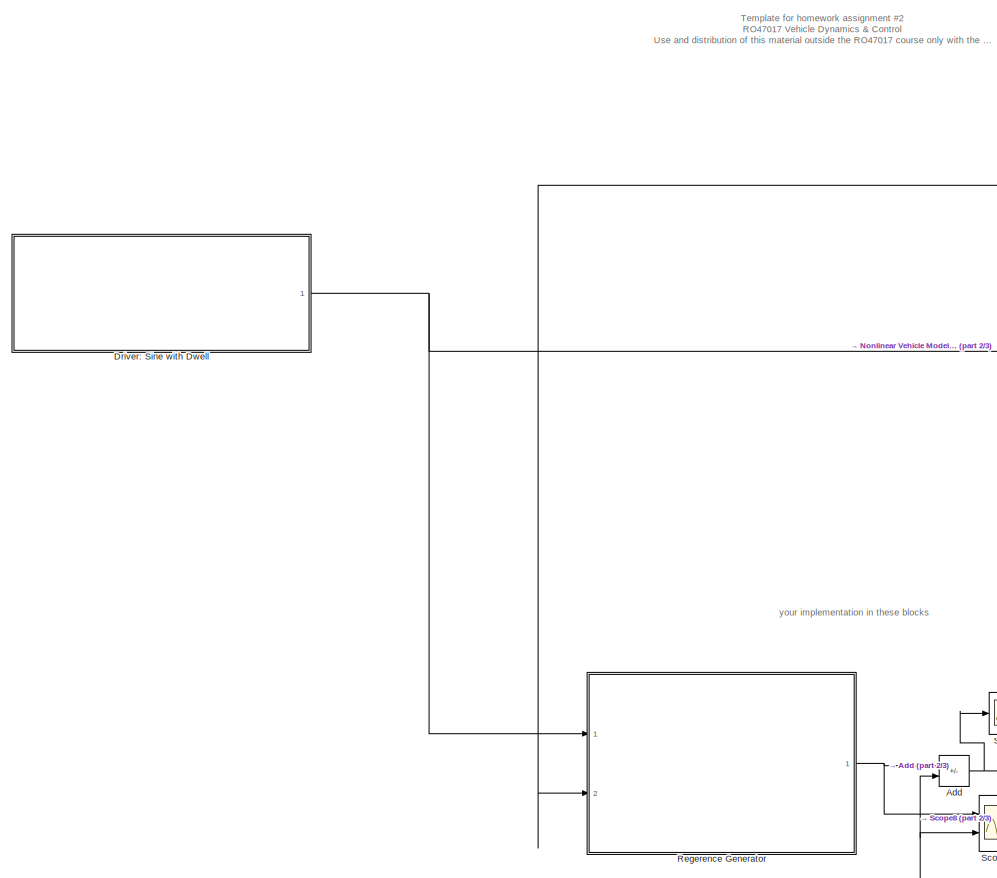
[diagram: root canvas - part 1/3, left side, full height]
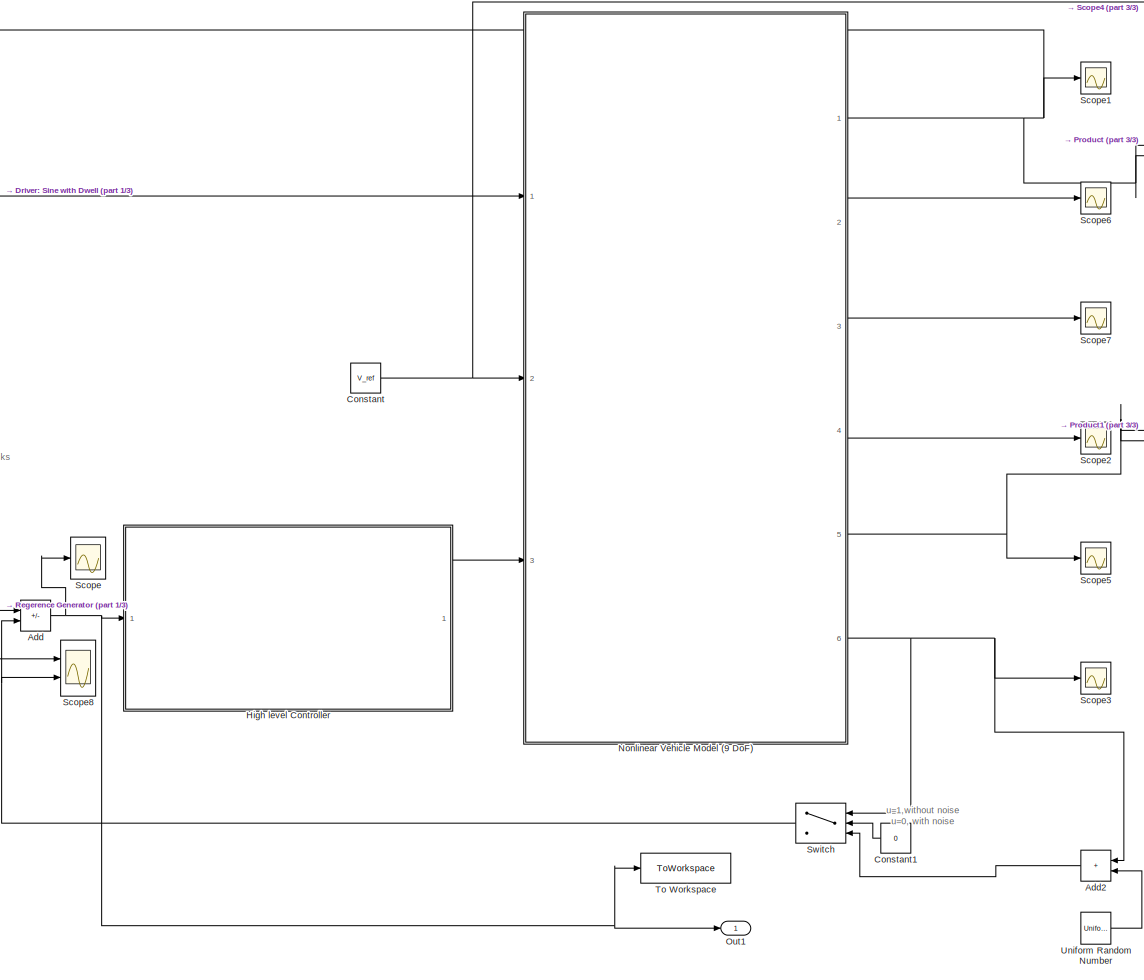
[diagram: root canvas - part 2/3, center side, full height]
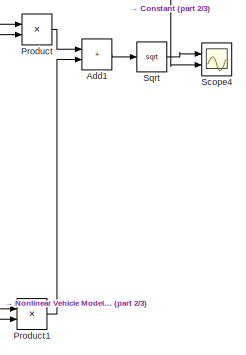
[diagram: root canvas - part 3/3, middle right region]
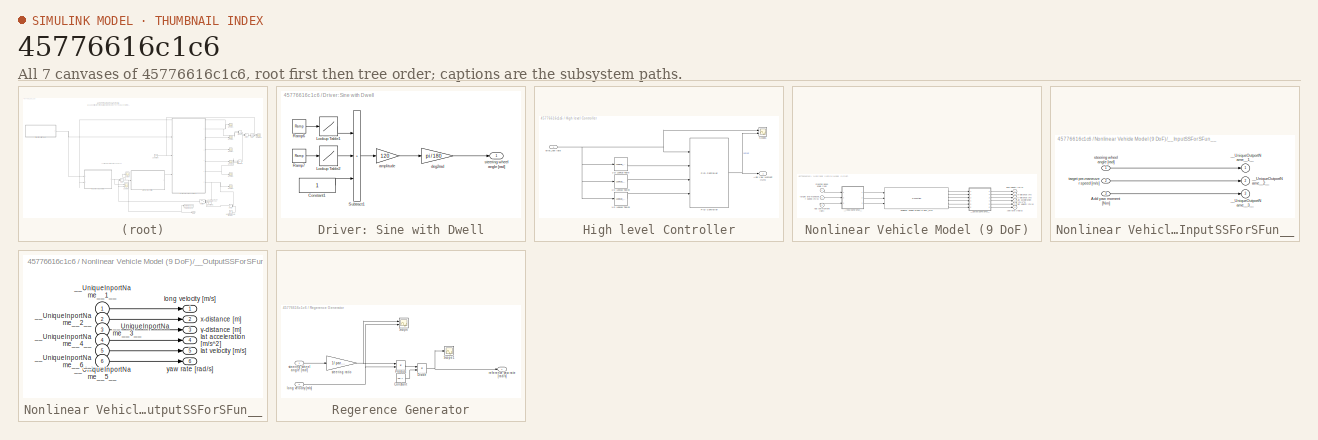
[diagram: thumbnail index - all 7 canvases of the model, root first then tree order]
MODEL slx_45776616c1c6
KIND model
CONFIG AbsTol = auto
CONFIG EnableMultiTasking = on
CONFIG FixedStep = 1e-3
CONFIG MaxStep = auto
CONFIG MinStep = auto
CONFIG RelTol = 1e-3
CONFIG SampleTimeConstraint = Unconstrained
CONFIG Solver = ode4
CONFIG SolverName = ode4
CONFIG StartTime = 0.0
CONFIG StopTime = 20
BLOCK [Sum] Add
  IconShape = rectangular
  Inputs = +-
  Ports = [2, 1]
BLOCK [Sum] Add1
  IconShape = rectangular
  Ports = [2, 1]
BLOCK [Sum] Add2
  IconShape = rectangular
  Ports = [2, 1]
BLOCK [Constant] Constant
  Value = V_ref
BLOCK [Constant] Constant1
  Value = 0
BLOCK [SubSystem] Driver: Sine with Dwell
  Ports = [0, 1]
  RequestExecContextInheritance = off
BLOCK [Constant] Driver: Sine with Dwell/Constant1
BLOCK [Lookup] Driver: Sine with Dwell/Lookup Table1
  InputValues = [0:0.1:3*pi/2 3*pi/2+eps]*0.7
  LookUpMeth = Interpolation-Use End Values
  SaturateOnIntegerOverflow = off
  Table = sin([0:0.1:3*pi/2 3*pi/2+eps])
BLOCK [Lookup] Driver: Sine with Dwell/Lookup Table2
  InputValues = [3*pi/2:0.1:2*pi 2*pi+eps]*0.7
  LookUpMeth = Interpolation-Use End Values
  SaturateOnIntegerOverflow = off
  Table = sin([3*pi/2:0.1:2*pi 2*pi+eps])
BLOCK [Reference] Driver: Sine with Dwell/Ramp6  REF=simulink/Sources/Ramp
  Ports = [0, 1]
  SourceBlock = simulink/Sources/Ramp
  SourceProductBaseCode = SL
  SourceType = Ramp
BLOCK [Reference] Driver: Sine with Dwell/Ramp7  REF=simulink/Sources/Ramp
  Ports = [0, 1]
  SourceBlock = simulink/Sources/Ramp
  SourceProductBaseCode = SL
  SourceType = Ramp
BLOCK [Sum] Driver: Sine with Dwell/Subtract1
  IconShape = rectangular
  Inputs = +++
  Ports = [3, 1]
BLOCK [Gain] Driver: Sine with Dwell/amplitude
  Gain = 120
BLOCK [Gain] Driver: Sine with Dwell/deg2rad
  Gain = pi / 180
BLOCK [Outport] Driver: Sine with Dwell/steering wheel angle [rad]
  VectorParamsAs1DForOutWhenUnconnected = off
BLOCK [SubSystem] High level Controller
  Ports = [1, 1]
  RequestExecContextInheritance = off
BLOCK [Lookup_n-D] High level Controller/1-D Lookup Table
  BreakpointsForDimension1 = [0;0.03;0.06;0.09;0.12]
  InternalRulePriority = Speed
  NumberOfTableDimensions = 1
  Ports = [1, 1]
  RndMeth = Simplest
  Table = [50000;50000*1.1;50000*1.1;50000*1.2;50000*1.2]
BLOCK [Lookup_n-D] High level Controller/1-D Lookup Table2
  BreakpointsForDimension1 = [0;0.03;0.06;0.09;0.12]
  InternalRulePriority = Speed
  NumberOfTableDimensions = 1
  Ports = [1, 1]
  RndMeth = Simplest
  Table = [50000;50000*1.1;50000*1.2;50000*1.2;50000*1.2]
BLOCK [Lookup_n-D] High level Controller/1-D Lookup Table3
  BreakpointsForDimension1 = [0;2;4;6;8]
  InternalRulePriority = Speed
  NumberOfTableDimensions = 1
  Ports = [1, 1]
  RndMeth = Simplest
  Table = [100;100;100;100;100]
BLOCK [Outport] High level Controller/Add Yaw Moment [Nm]
  VectorParamsAs1DForOutWhenUnconnected = off
BLOCK [Reference] High level Controller/PID Controller  REF=simulink/Continuous/PID Controller
  Ports = [4, 1]
  SourceBlock = simulink/Continuous/PID Controller
  SourceProductBaseCode = SL
  SourceType = PID 1dof
BLOCK [Scope] High level Controller/Scope1
  Floating = off
  NumInputPorts = 2
  Ports = [2]
  ScopeSpecificationString = Simulink.scopes.TimeScopeBlockCfg('CurrentConfiguration', extmgr.ConfigurationSet(extmgr.Configuration('Core','General UI',true),extmgr.Configuration('Core','Source UI',true),extmgr.Configuration('Sources','WiredSimulink',true,'DataLoggingVariableName','ScopeData1'),extmgr.Configuration('Visuals','Time Domain',true,'SerializedDisplays',{struct('MinYLimReal','-21547.07657','MaxYLimReal','25652.5672...<+1458ch>
BLOCK [Inport] High level Controller/error_yaw rate
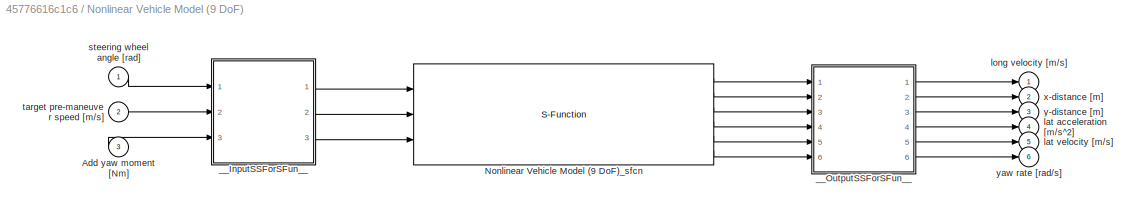
BLOCK [SubSystem] Nonlinear Vehicle Model (9 DoF)
  Ports = [3, 6]
  RequestExecContextInheritance = off
BLOCK [Inport] Nonlinear Vehicle Model (9 DoF)/Add yaw moment [Nm]
  Port = 3
BLOCK [S-Function] Nonlinear Vehicle Model (9 DoF)/Nonlinear Vehicle Model (9 DoF)_sfcn
  CopyFcn = if ~strcmp(get_param(gcb,'Linkstatus'),'none') && ...\n~strcmp(get_param(gcb,'Linkstatus'),'implicit')      \n  set_param(gcb,'LinkStatus','none');                \nend
  EnableBusSupport = off
  FunctionName = Nonlinear_sf
  Ports = [3, 6]
  SFcnIsStateOwnerBlock = off
  SFunctionDeploymentMode = off
BLOCK [SubSystem] Nonlinear Vehicle Model (9 DoF)/__InputSSForSFun__
  PermitHierarchicalResolution = ExplicitOnly
  Ports = [3, 3]
  RequestExecContextInheritance = off
BLOCK [Inport] Nonlinear Vehicle Model (9 DoF)/__InputSSForSFun__/Add yaw moment [Nm]
  Port = 3
BLOCK [Outport] Nonlinear Vehicle Model (9 DoF)/__InputSSForSFun__/__UniqueOutportName__1__
BLOCK [Outport] Nonlinear Vehicle Model (9 DoF)/__InputSSForSFun__/__UniqueOutportName__2__
  Port = 2
BLOCK [Outport] Nonlinear Vehicle Model (9 DoF)/__InputSSForSFun__/__UniqueOutportName__3__
  Port = 3
BLOCK [Inport] Nonlinear Vehicle Model (9 DoF)/__InputSSForSFun__/steering wheel angle [rad]
BLOCK [Inport] Nonlinear Vehicle Model (9 DoF)/__InputSSForSFun__/target pre-maneuver speed [m//s]
  Port = 2
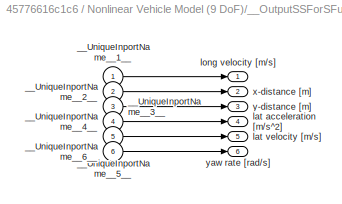
BLOCK [SubSystem] Nonlinear Vehicle Model (9 DoF)/__OutputSSForSFun__
  PermitHierarchicalResolution = ExplicitOnly
  Ports = [6, 6]
  RequestExecContextInheritance = off
BLOCK [Inport] Nonlinear Vehicle Model (9 DoF)/__OutputSSForSFun__/__UniqueInportName__1__
BLOCK [Inport] Nonlinear Vehicle Model (9 DoF)/__OutputSSForSFun__/__UniqueInportName__2__
  Port = 2
BLOCK [Inport] Nonlinear Vehicle Model (9 DoF)/__OutputSSForSFun__/__UniqueInportName__3__
  Port = 3
BLOCK [Inport] Nonlinear Vehicle Model (9 DoF)/__OutputSSForSFun__/__UniqueInportName__4__
  Port = 4
BLOCK [Inport] Nonlinear Vehicle Model (9 DoF)/__OutputSSForSFun__/__UniqueInportName__5__
  Port = 5
BLOCK [Inport] Nonlinear Vehicle Model (9 DoF)/__OutputSSForSFun__/__UniqueInportName__6__
  Port = 6
BLOCK [Outport] Nonlinear Vehicle Model (9 DoF)/__OutputSSForSFun__/lat acceleration [m//s^2]
  Port = 4
  VectorParamsAs1DForOutWhenUnconnected = off
BLOCK [Outport] Nonlinear Vehicle Model (9 DoF)/__OutputSSForSFun__/lat velocity [m//s]
  Port = 5
  VectorParamsAs1DForOutWhenUnconnected = off
BLOCK [Outport] Nonlinear Vehicle Model (9 DoF)/__OutputSSForSFun__/long velocity [m//s]
  VectorParamsAs1DForOutWhenUnconnected = off
BLOCK [Outport] Nonlinear Vehicle Model (9 DoF)/__OutputSSForSFun__/x-distance [m]
  Port = 2
  VectorParamsAs1DForOutWhenUnconnected = off
BLOCK [Outport] Nonlinear Vehicle Model (9 DoF)/__OutputSSForSFun__/y-distance [m]
  Port = 3
  VectorParamsAs1DForOutWhenUnconnected = off
BLOCK [Outport] Nonlinear Vehicle Model (9 DoF)/__OutputSSForSFun__/yaw rate [rad//s]
  Port = 6
  VectorParamsAs1DForOutWhenUnconnected = off
BLOCK [Outport] Nonlinear Vehicle Model (9 DoF)/lat acceleration [m//s^2]
  Port = 4
  VectorParamsAs1DForOutWhenUnconnected = off
BLOCK [Outport] Nonlinear Vehicle Model (9 DoF)/lat velocity [m//s]
  Port = 5
  VectorParamsAs1DForOutWhenUnconnected = off
BLOCK [Outport] Nonlinear Vehicle Model (9 DoF)/long velocity [m//s]
  VectorParamsAs1DForOutWhenUnconnected = off
BLOCK [Inport] Nonlinear Vehicle Model (9 DoF)/steering wheel angle [rad]
BLOCK [Inport] Nonlinear Vehicle Model (9 DoF)/target pre-maneuver speed [m//s]
  Port = 2
BLOCK [Outport] Nonlinear Vehicle Model (9 DoF)/x-distance [m]
  Port = 2
  VectorParamsAs1DForOutWhenUnconnected = off
BLOCK [Outport] Nonlinear Vehicle Model (9 DoF)/y-distance [m]
  Port = 3
  VectorParamsAs1DForOutWhenUnconnected = off
BLOCK [Outport] Nonlinear Vehicle Model (9 DoF)/yaw rate [rad//s]
  Port = 6
  VectorParamsAs1DForOutWhenUnconnected = off
BLOCK [Outport] Out1
  SignalName = error_yaw_rate
BLOCK [Product] Product
  Ports = [2, 1]
BLOCK [Product] Product1
  Ports = [2, 1]
BLOCK [SubSystem] Regerence Generator
  Ports = [2, 1]
  RequestExecContextInheritance = off
BLOCK [Constant] Regerence Generator/Constant
  Value = par.L
BLOCK [Product] Regerence Generator/Divide
  Inputs = */
  Ports = [2, 1]
BLOCK [Product] Regerence Generator/Product
  Ports = [2, 1]
BLOCK [Scope] Regerence Generator/Scope
  Floating = off
  NumInputPorts = 2
  Ports = [2]
  ScopeSpecificationString = Simulink.scopes.TimeScopeBlockCfg('CurrentConfiguration', extmgr.ConfigurationSet(extmgr.Configuration('Core','General UI',true),extmgr.Configuration('Core','Source UI',true),extmgr.Configuration('Sources','WiredSimulink',true,'DataLoggingVariableName','ScopeData1'),extmgr.Configuration('Visuals','Time Domain',true,'SerializedDisplays',{struct('MinYLimReal','-2.24029','MaxYLimReal','18.8026','YLab...<+1395ch>
BLOCK [Scope] Regerence Generator/Scope1
  Floating = off
  NumInputPorts = 1
  Ports = [1]
  ScopeSpecificationString = Simulink.scopes.TimeScopeBlockCfg('CurrentConfiguration', extmgr.ConfigurationSet(extmgr.Configuration('Core','General UI',true),extmgr.Configuration('Core','Source UI',true),extmgr.Configuration('Sources','WiredSimulink',true,'DataLoggingVariableName','ScopeData2'),extmgr.Configuration('Visuals','Time Domain',true,'SerializedDisplays',{struct('MinYLimReal','-0.96315','MaxYLimReal','0.98835','YLab...<+1388ch>
BLOCK [Inport] Regerence Generator/long velocity [m//s]
  Port = 2
BLOCK [Outport] Regerence Generator/reference yaw rate [rad//s]
  VectorParamsAs1DForOutWhenUnconnected = off
BLOCK [Gain] Regerence Generator/steering ratio
  Gain = 1/ par.i_steer
BLOCK [Inport] Regerence Generator/steering wheel angle [rad]
BLOCK [Scope] Scope
  Floating = off
  NumInputPorts = 1
  Ports = [1]
  ScopeSpecificationString = Simulink.scopes.TimeScopeBlockCfg('CurrentConfiguration', extmgr.ConfigurationSet(extmgr.Configuration('Core','General UI',true),extmgr.Configuration('Core','Source UI',true),extmgr.Configuration('Sources','WiredSimulink',true,'DataLoggingVariableName','ScopeData1'),extmgr.Configuration('Visuals','Time Domain',true,'SerializedDisplays',{struct('MinYLimReal','-0.11528','MaxYLimReal','0.08614','YLab...<+1410ch>
BLOCK [Scope] Scope1
  Floating = off
  NumInputPorts = 1
  Ports = [1]
  ScopeSpecificationString = Simulink.scopes.TimeScopeBlockCfg('CurrentConfiguration', extmgr.ConfigurationSet(extmgr.Configuration('Core','General UI',true),extmgr.Configuration('Core','Source UI',true),extmgr.Configuration('Sources','WiredSimulink',true,'DataLoggingVariableName','ScopeData3'),extmgr.Configuration('Visuals','Time Domain',true,'SerializedDisplays',{struct('MinYLimReal','12.13847','MaxYLimReal','29.55217','YLa...<+1467ch>
BLOCK [Scope] Scope2
  Floating = off
  NumInputPorts = 1
  Ports = [1]
  ScopeSpecificationString = Simulink.scopes.TimeScopeBlockCfg('CurrentConfiguration', extmgr.ConfigurationSet(extmgr.Configuration('Core','General UI',true),extmgr.Configuration('Core','Source UI',true),extmgr.Configuration('Sources','WiredSimulink',true),extmgr.Configuration('Visuals','Time Domain',true,'SerializedDisplays',{struct('MinYLimReal','-10.58437','MaxYLimReal','12.15308','YLabelReal','','MinYLimMag','0.00000','Ma...<+1359ch>
BLOCK [Scope] Scope3
  Floating = off
  NumInputPorts = 1
  Ports = [1]
  ScopeSpecificationString = Simulink.scopes.TimeScopeBlockCfg('CurrentConfiguration', extmgr.ConfigurationSet(extmgr.Configuration('Core','General UI',true),extmgr.Configuration('Core','Source UI',true),extmgr.Configuration('Sources','WiredSimulink',true,'DataLoggingVariableName','ScopeData4'),extmgr.Configuration('Visuals','Time Domain',true,'SerializedDisplays',{struct('MinYLimReal','-0.85589','MaxYLimReal','0.89106','YLab...<+1487ch>
BLOCK [Scope] Scope4
  Floating = off
  NumInputPorts = 2
  Ports = [2]
  ScopeSpecificationString = Simulink.scopes.TimeScopeBlockCfg('CurrentConfiguration', extmgr.ConfigurationSet(extmgr.Configuration('Core','General UI',true),extmgr.Configuration('Core','Source UI',true),extmgr.Configuration('Sources','WiredSimulink',true,'DataLoggingVariableName','ScopeData2'),extmgr.Configuration('Visuals','Time Domain',true,'SerializedDisplays',{struct('MinYLimReal','12.13847','MaxYLimReal','29.55217','YLa...<+1509ch>
BLOCK [Scope] Scope5
  Floating = off
  NumInputPorts = 1
  Ports = [1]
  ScopeSpecificationString = Simulink.scopes.TimeScopeBlockCfg('CurrentConfiguration', extmgr.ConfigurationSet(extmgr.Configuration('Core','General UI',true),extmgr.Configuration('Core','Source UI',true),extmgr.Configuration('Sources','WiredSimulink',true,'DataLoggingVariableName','ScopeData1'),extmgr.Configuration('Visuals','Time Domain',true,'SerializedDisplays',{struct('MinYLimReal','-12.0844','MaxYLimReal','14.28213','YLa...<+1396ch>
BLOCK [Scope] Scope6
  Floating = off
  NumInputPorts = 1
  Ports = [1]
  ScopeSpecificationString = Simulink.scopes.TimeScopeBlockCfg('CurrentConfiguration', extmgr.ConfigurationSet(extmgr.Configuration('Core','General UI',true),extmgr.Configuration('Core','Source UI',true),extmgr.Configuration('Sources','WiredSimulink',true,'DataLoggingVariableName','ScopeData2'),extmgr.Configuration('Visuals','Time Domain',true,'SerializedDisplays',{struct('MinYLimReal','-37.76452','MaxYLimReal','339.88072','Y...<+1402ch>
BLOCK [Scope] Scope7
  Floating = off
  NumInputPorts = 1
  Ports = [1]
  ScopeSpecificationString = Simulink.scopes.TimeScopeBlockCfg('CurrentConfiguration', extmgr.ConfigurationSet(extmgr.Configuration('Core','General UI',true),extmgr.Configuration('Core','Source UI',true),extmgr.Configuration('Sources','WiredSimulink',true,'DataLoggingVariableName','ScopeData6'),extmgr.Configuration('Visuals','Time Domain',true,'SerializedDisplays',{struct('MinYLimReal','-40.97129','MaxYLimReal','7.30085','YLa...<+1396ch>
BLOCK [Scope] Scope8
  Floating = off
  NumInputPorts = 2
  Ports = [2]
  ScopeSpecificationString = Simulink.scopes.TimeScopeBlockCfg('CurrentConfiguration', extmgr.ConfigurationSet(extmgr.Configuration('Core','General UI',true),extmgr.Configuration('Core','Source UI',true),extmgr.Configuration('Sources','WiredSimulink',true,'DataLoggingVariableName','ScopeData3'),extmgr.Configuration('Visuals','Time Domain',true,'SerializedDisplays',{struct('MinYLimReal','-0.96113','MaxYLimReal','0.98732','YLab...<+1435ch>
BLOCK [Sqrt] Sqrt
BLOCK [Switch] Switch
  Criteria = u2 > Threshold
  InputSameDT = off
  SaturateOnIntegerOverflow = off
BLOCK [ToWorkspace] To Workspace
  FixptAsFi = on
  MaxDataPoints = inf
  Ports = [1]
  SampleTime = -1
  SaveFormat = Timeseries
  VariableName = error_yaw_rate
BLOCK [UniformRandomNumber] Uniform Random Number
  Maximum = 0.01745
  Minimum = -0.01745
  SampleTime = 0.001
ANNOTATION (root): Template for homework assignment #2 RO47017 Vehicle Dynamics & Control Use and distribution of this material outside the RO47017 course only with the permission of the course coordinator
ANNOTATION (root): u=1,without noise u=0, with noise
ANNOTATION (root): your implementation in these blocks
LINE Add1:1 -> Sqrt:1
LINE Add2:1 -> Switch:3
NET Add:1 -> High level Controller:1, Out1:1, Scope:1, To Workspace:1
LINE Constant1:1 -> Switch:2
NET Constant:1 -> Nonlinear Vehicle Model (9 DoF):2, Scope4:2
LINE Driver: Sine with Dwell/Constant1:1 -> Driver: Sine with Dwell/Subtract1:3
LINE Driver: Sine with Dwell/Lookup Table1:1 -> Driver: Sine with Dwell/Subtract1:1
LINE Driver: Sine with Dwell/Lookup Table2:1 -> Driver: Sine with Dwell/Subtract1:2
LINE Driver: Sine with Dwell/Ramp6:1 -> Driver: Sine with Dwell/Lookup Table1:1
LINE Driver: Sine with Dwell/Ramp7:1 -> Driver: Sine with Dwell/Lookup Table2:1
LINE Driver: Sine with Dwell/Subtract1:1 -> Driver: Sine with Dwell/amplitude:1
LINE Driver: Sine with Dwell/amplitude:1 -> Driver: Sine with Dwell/deg2rad:1
LINE Driver: Sine with Dwell/deg2rad:1 -> Driver: Sine with Dwell/steering wheel angle [rad]:1
NET Driver: Sine with Dwell:1 -> Nonlinear Vehicle Model (9 DoF):1, Regerence Generator:1
LINE High level Controller/1-D Lookup Table2:1 -> High level Controller/PID Controller:3
LINE High level Controller/1-D Lookup Table3:1 -> High level Controller/PID Controller:4
LINE High level Controller/1-D Lookup Table:1 -> High level Controller/PID Controller:2
NET High level Controller/PID Controller:1 -> High level Controller/Add Yaw Moment [Nm]:1, High level Controller/Scope1:2
NET High level Controller/error_yaw rate:1 -> High level Controller/1-D Lookup Table2:1, High level Controller/1-D Lookup Table3:1, High level Controller/1-D Lookup Table:1, High level Controller/PID Controller:1, High level Controller/Scope1:1
LINE High level Controller:1 -> Nonlinear Vehicle Model (9 DoF):3
LINE Nonlinear Vehicle Model (9 DoF)/Add yaw moment [Nm]:1 -> Nonlinear Vehicle Model (9 DoF)/__InputSSForSFun__:3
LINE Nonlinear Vehicle Model (9 DoF)/Nonlinear Vehicle Model (9 DoF)_sfcn:1 -> Nonlinear Vehicle Model (9 DoF)/__OutputSSForSFun__:1
LINE Nonlinear Vehicle Model (9 DoF)/Nonlinear Vehicle Model (9 DoF)_sfcn:2 -> Nonlinear Vehicle Model (9 DoF)/__OutputSSForSFun__:2
LINE Nonlinear Vehicle Model (9 DoF)/Nonlinear Vehicle Model (9 DoF)_sfcn:3 -> Nonlinear Vehicle Model (9 DoF)/__OutputSSForSFun__:3
LINE Nonlinear Vehicle Model (9 DoF)/Nonlinear Vehicle Model (9 DoF)_sfcn:4 -> Nonlinear Vehicle Model (9 DoF)/__OutputSSForSFun__:4
LINE Nonlinear Vehicle Model (9 DoF)/Nonlinear Vehicle Model (9 DoF)_sfcn:5 -> Nonlinear Vehicle Model (9 DoF)/__OutputSSForSFun__:5
LINE Nonlinear Vehicle Model (9 DoF)/Nonlinear Vehicle Model (9 DoF)_sfcn:6 -> Nonlinear Vehicle Model (9 DoF)/__OutputSSForSFun__:6
LINE Nonlinear Vehicle Model (9 DoF)/__InputSSForSFun__/Add yaw moment [Nm]:1 -> Nonlinear Vehicle Model (9 DoF)/__InputSSForSFun__/__UniqueOutportName__3__:1
LINE Nonlinear Vehicle Model (9 DoF)/__InputSSForSFun__/steering wheel angle [rad]:1 -> Nonlinear Vehicle Model (9 DoF)/__InputSSForSFun__/__UniqueOutportName__1__:1
LINE Nonlinear Vehicle Model (9 DoF)/__InputSSForSFun__/target pre-maneuver speed [m//s]:1 -> Nonlinear Vehicle Model (9 DoF)/__InputSSForSFun__/__UniqueOutportName__2__:1
LINE Nonlinear Vehicle Model (9 DoF)/__InputSSForSFun__:1 -> Nonlinear Vehicle Model (9 DoF)/Nonlinear Vehicle Model (9 DoF)_sfcn:1
LINE Nonlinear Vehicle Model (9 DoF)/__InputSSForSFun__:2 -> Nonlinear Vehicle Model (9 DoF)/Nonlinear Vehicle Model (9 DoF)_sfcn:2
LINE Nonlinear Vehicle Model (9 DoF)/__InputSSForSFun__:3 -> Nonlinear Vehicle Model (9 DoF)/Nonlinear Vehicle Model (9 DoF)_sfcn:3
LINE Nonlinear Vehicle Model (9 DoF)/__OutputSSForSFun__/__UniqueInportName__1__:1 -> Nonlinear Vehicle Model (9 DoF)/__OutputSSForSFun__/long velocity [m//s]:1
LINE Nonlinear Vehicle Model (9 DoF)/__OutputSSForSFun__/__UniqueInportName__2__:1 -> Nonlinear Vehicle Model (9 DoF)/__OutputSSForSFun__/x-distance [m]:1
LINE Nonlinear Vehicle Model (9 DoF)/__OutputSSForSFun__/__UniqueInportName__3__:1 -> Nonlinear Vehicle Model (9 DoF)/__OutputSSForSFun__/y-distance [m]:1
LINE Nonlinear Vehicle Model (9 DoF)/__OutputSSForSFun__/__UniqueInportName__4__:1 -> Nonlinear Vehicle Model (9 DoF)/__OutputSSForSFun__/lat acceleration [m//s^2]:1
LINE Nonlinear Vehicle Model (9 DoF)/__OutputSSForSFun__/__UniqueInportName__5__:1 -> Nonlinear Vehicle Model (9 DoF)/__OutputSSForSFun__/lat velocity [m//s]:1
LINE Nonlinear Vehicle Model (9 DoF)/__OutputSSForSFun__/__UniqueInportName__6__:1 -> Nonlinear Vehicle Model (9 DoF)/__OutputSSForSFun__/yaw rate [rad//s]:1
LINE Nonlinear Vehicle Model (9 DoF)/__OutputSSForSFun__:1 -> Nonlinear Vehicle Model (9 DoF)/long velocity [m//s]:1
LINE Nonlinear Vehicle Model (9 DoF)/__OutputSSForSFun__:2 -> Nonlinear Vehicle Model (9 DoF)/x-distance [m]:1
LINE Nonlinear Vehicle Model (9 DoF)/__OutputSSForSFun__:3 -> Nonlinear Vehicle Model (9 DoF)/y-distance [m]:1
LINE Nonlinear Vehicle Model (9 DoF)/__OutputSSForSFun__:4 -> Nonlinear Vehicle Model (9 DoF)/lat acceleration [m//s^2]:1
LINE Nonlinear Vehicle Model (9 DoF)/__OutputSSForSFun__:5 -> Nonlinear Vehicle Model (9 DoF)/lat velocity [m//s]:1
LINE Nonlinear Vehicle Model (9 DoF)/__OutputSSForSFun__:6 -> Nonlinear Vehicle Model (9 DoF)/yaw rate [rad//s]:1
LINE Nonlinear Vehicle Model (9 DoF)/steering wheel angle [rad]:1 -> Nonlinear Vehicle Model (9 DoF)/__InputSSForSFun__:1
LINE Nonlinear Vehicle Model (9 DoF)/target pre-maneuver speed [m//s]:1 -> Nonlinear Vehicle Model (9 DoF)/__InputSSForSFun__:2
NET Nonlinear Vehicle Model (9 DoF):1 -> Product:1, Product:2, Regerence Generator:2, Scope1:1
LINE Nonlinear Vehicle Model (9 DoF):2 -> Scope6:1
LINE Nonlinear Vehicle Model (9 DoF):3 -> Scope7:1
LINE Nonlinear Vehicle Model (9 DoF):4 -> Scope2:1
NET Nonlinear Vehicle Model (9 DoF):5 -> Product1:1, Product1:2, Scope5:1
NET Nonlinear Vehicle Model (9 DoF):6 -> Add2:1, Scope3:1, Switch:1
LINE Product1:1 -> Add1:2
LINE Product:1 -> Add1:1
LINE Regerence Generator/Constant:1 -> Regerence Generator/Divide:2
NET Regerence Generator/Divide:1 -> Regerence Generator/Scope1:1, Regerence Generator/reference yaw rate [rad//s]:1
LINE Regerence Generator/Product:1 -> Regerence Generator/Divide:1
NET Regerence Generator/long velocity [m//s]:1 -> Regerence Generator/Product:2, Regerence Generator/Scope:2
NET Regerence Generator/steering ratio:1 -> Regerence Generator/Product:1, Regerence Generator/Scope:1
LINE Regerence Generator/steering wheel angle [rad]:1 -> Regerence Generator/steering ratio:1
NET Regerence Generator:1 -> Add:1, Scope8:1
LINE Sqrt:1 -> Scope4:1
NET Switch:1 -> Add:2, Scope8:2
LINE Uniform Random Number:1 -> Add2:2
note: NET lines group one-source signal fan-out (src -> all destinations, sorted); 1:1 wires keep LINE
